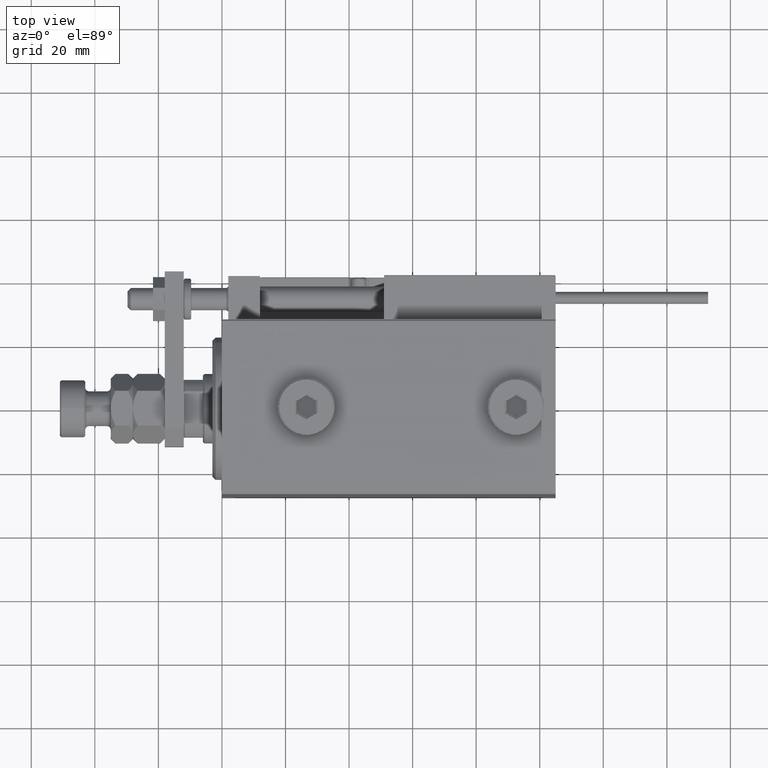
[diagram: clean part render]
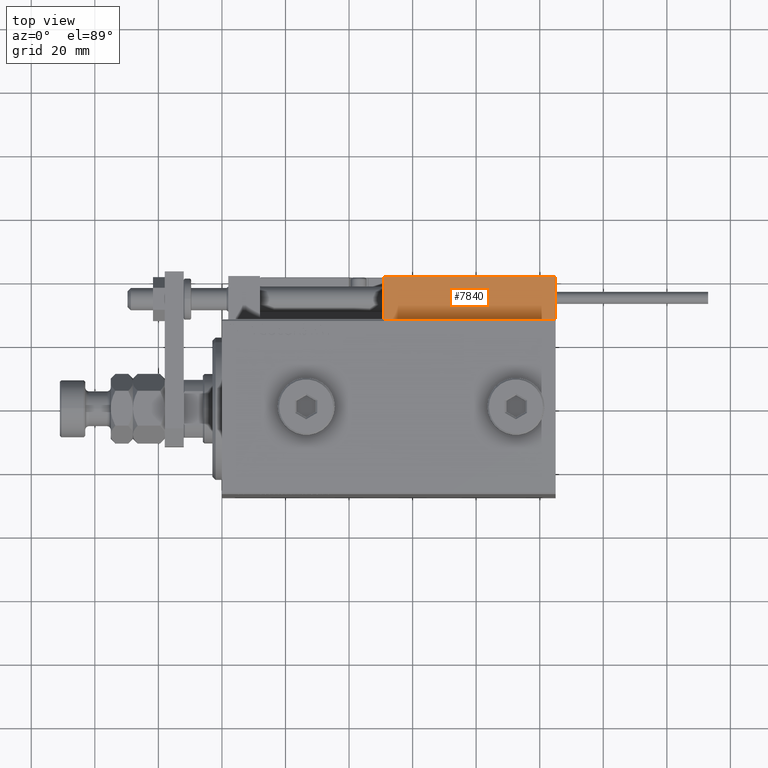
[diagram: same view with one face highlighted and labeled with its STEP entity id]
A machine part, top view. The second image highlights one B-rep face of the part: STEP entity #7840.
In plain terms, the highlighted planar face has unit normal (-0, -0, -1).
Its self-contained STEP definition (entity closure, byte-faithful):
#490 = VECTOR ( 'NONE', #34159, 1000.000000000000000 ) ;
#786 = LINE ( 'NONE', #8889, #11468 ) ;
#1167 = CARTESIAN_POINT ( 'NONE',  ( 27.00000000000006395, 20.00000000000001776, 14.00000000000000000 ) ) ;
#1339 = CARTESIAN_POINT ( 'NONE',  ( -26.99999999999993605, 20.00000000000002132, 13.70000000000000107 ) ) ;
#4512 = VERTEX_POINT ( 'NONE', #1339 ) ;
#4844 = DIRECTION ( 'NONE',  ( 1.000000000000000000, -6.424901762877063495E-17, -0.000000000000000000 ) ) ;
#6474 = LINE ( 'NONE', #1167, #8087 ) ;
#6838 = FACE_OUTER_BOUND ( 'NONE', #19277, .T. ) ;
#6971 = EDGE_CURVE ( 'NONE', #4512, #36330, #39379, .T. ) ;
#7101 = CARTESIAN_POINT ( 'NONE',  ( -26.99999999999993605, 20.00000000000002132, 14.00000000000000000 ) ) ;
#7840 = ADVANCED_FACE ( 'NONE', ( #6838 ), #44751, .F. ) ;
#8087 = VECTOR ( 'NONE', #34983, 1000.000000000000000 ) ;
#8889 = CARTESIAN_POINT ( 'NONE',  ( 27.00000000000006395, 20.00000000000001776, 13.70000000000000107 ) ) ;
#9898 = EDGE_CURVE ( 'NONE', #4512, #12109, #786, .T. ) ;
#11413 = DIRECTION ( 'NONE',  ( -6.424901762877063495E-17, -1.000000000000000000, 0.000000000000000000 ) ) ;
#11468 = VECTOR ( 'NONE', #4844, 1000.000000000000000 ) ;
#12109 = VERTEX_POINT ( 'NONE', #19568 ) ;
#14036 = VECTOR ( 'NONE', #52006, 1000.000000000000000 ) ;
#14886 = ORIENTED_EDGE ( 'NONE', *, *, #16838, .T. ) ;
#14923 = CARTESIAN_POINT ( 'NONE',  ( 27.00000000000006395, 20.00000000000001776, 14.00000000000000000 ) ) ;
#16838 = EDGE_CURVE ( 'NONE', #40422, #36330, #50815, .T. ) ;
#17395 = CARTESIAN_POINT ( 'NONE',  ( -26.99999999999993605, 20.00000000000002132, 0.000000000000000000 ) ) ;
#19228 = DIRECTION ( 'NONE',  ( 1.000000000000000000, -6.424901762877063495E-17, 0.000000000000000000 ) ) ;
#19277 = EDGE_LOOP ( 'NONE', ( #30927, #34383, #35937, #14886 ) ) ;
#19568 = CARTESIAN_POINT ( 'NONE',  ( 27.00000000000006395, 20.00000000000001776, 13.70000000000000107 ) ) ;
#21525 = CARTESIAN_POINT ( 'NONE',  ( 27.00000000000006395, 20.00000000000001776, 0.000000000000000000 ) ) ;
#30927 = ORIENTED_EDGE ( 'NONE', *, *, #6971, .F. ) ;
#34159 = DIRECTION ( 'NONE',  ( -1.000000000000000000, 6.424901762877062263E-17, 0.000000000000000000 ) ) ;
#34383 = ORIENTED_EDGE ( 'NONE', *, *, #9898, .T. ) ;
#34419 = CARTESIAN_POINT ( 'NONE',  ( 27.00000000000006395, 20.00000000000001776, 0.000000000000000000 ) ) ;
#34983 = DIRECTION ( 'NONE',  ( -0.000000000000000000, -0.000000000000000000, -1.000000000000000000 ) ) ;
#35937 = ORIENTED_EDGE ( 'NONE', *, *, #44761, .T. ) ;
#36330 = VERTEX_POINT ( 'NONE', #17395 ) ;
#39379 = LINE ( 'NONE', #7101, #14036 ) ;
#40422 = VERTEX_POINT ( 'NONE', #21525 ) ;
#44751 = PLANE ( 'NONE',  #48428 ) ;
#44761 = EDGE_CURVE ( 'NONE', #12109, #40422, #6474, .T. ) ;
#48428 = AXIS2_PLACEMENT_3D ( 'NONE', #14923, #11413, #19228 ) ;
#50815 = LINE ( 'NONE', #34419, #490 ) ;
#52006 = DIRECTION ( 'NONE',  ( -0.000000000000000000, -0.000000000000000000, -1.000000000000000000 ) ) ;